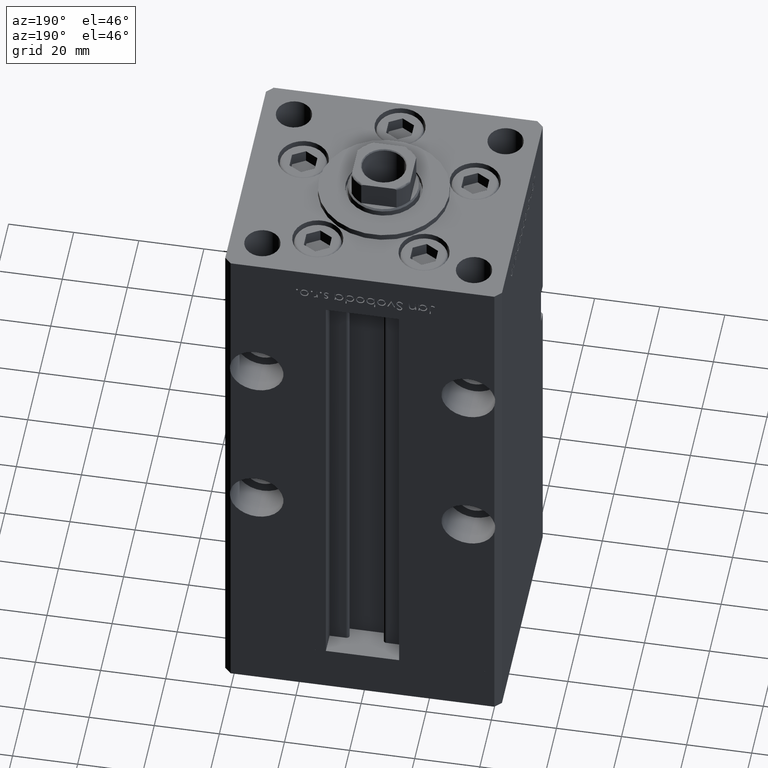
[diagram: clean part render]
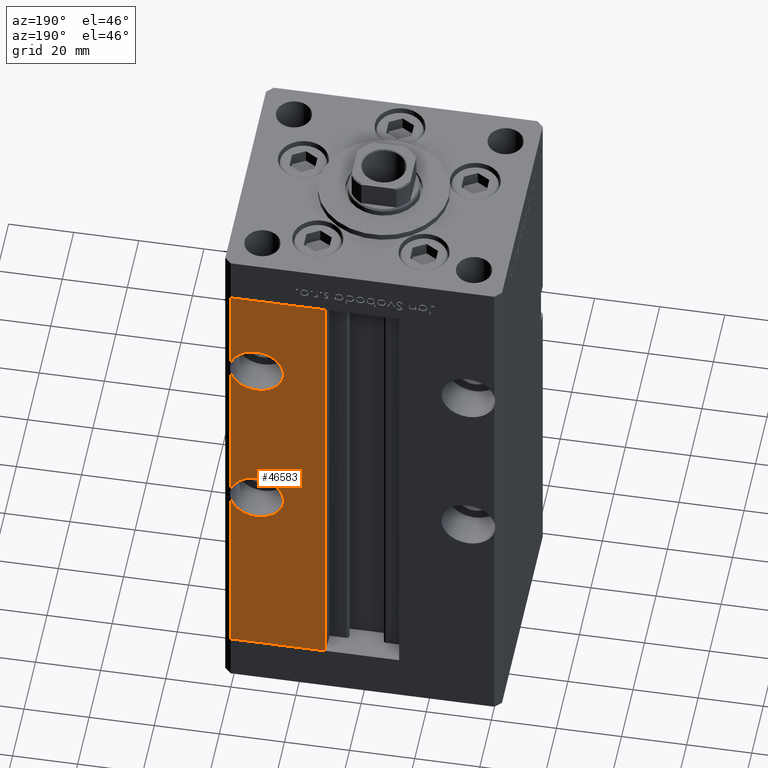
[diagram: same view with one face highlighted and labeled with its STEP entity id]
A machine part, auxiliary view. The second image highlights one B-rep face of the part: STEP entity #46583.
In plain terms, the highlighted planar face has unit normal (0, -1, 0).
Its self-contained STEP definition (entity closure, byte-faithful):
#159 = DIRECTION ( 'NONE',  ( 0.000000000000000000, 0.000000000000000000, -1.000000000000000000 ) ) ;
#1051 = EDGE_CURVE ( 'NONE', #2018, #48564, #11385, .T. ) ;
#2018 = VERTEX_POINT ( 'NONE', #45298 ) ;
#2619 = LINE ( 'NONE', #18510, #19942 ) ;
#3347 = VERTEX_POINT ( 'NONE', #20324 ) ;
#3755 = FACE_OUTER_BOUND ( 'NONE', #25471, .T. ) ;
#3896 = DIRECTION ( 'NONE',  ( 0.000000000000000000, 0.000000000000000000, 1.000000000000000000 ) ) ;
#4120 = ORIENTED_EDGE ( 'NONE', *, *, #49575, .F. ) ;
#4197 = DIRECTION ( 'NONE',  ( 0.000000000000000000, 1.000000000000000000, -0.000000000000000000 ) ) ;
#4511 = DIRECTION ( 'NONE',  ( 0.000000000000000000, 0.000000000000000000, -1.000000000000000000 ) ) ;
#4724 = CIRCLE ( 'NONE', #42515, 8.250000000000007105 ) ;
#4826 = CARTESIAN_POINT ( 'NONE',  ( 32.50000000000000000, 37.50000000000000000, 109.7499999999999858 ) ) ;
#5308 = VECTOR ( 'NONE', #16431, 1000.000000000000000 ) ;
#5543 = LINE ( 'NONE', #35129, #17250 ) ;
#6413 = CARTESIAN_POINT ( 'NONE',  ( 40.50000000000000711, 37.50000000000000000, 120.0155644370746586 ) ) ;
#6663 = VERTEX_POINT ( 'NONE', #38478 ) ;
#7986 = VECTOR ( 'NONE', #52550, 1000.000000000000000 ) ;
#8198 = AXIS2_PLACEMENT_3D ( 'NONE', #41045, #4197, #159 ) ;
#8674 = CARTESIAN_POINT ( 'NONE',  ( 32.50000000000000000, 37.50000000000000000, 126.2500000000000000 ) ) ;
#9078 = EDGE_CURVE ( 'NONE', #3347, #6663, #25321, .T. ) ;
#9269 = CARTESIAN_POINT ( 'NONE',  ( 32.50000000000000000, 37.50000000000000000, 118.0000000000000000 ) ) ;
#9861 = EDGE_CURVE ( 'NONE', #44326, #46759, #4724, .T. ) ;
#10371 = VERTEX_POINT ( 'NONE', #33985 ) ;
#11141 = ORIENTED_EDGE ( 'NONE', *, *, #35712, .T. ) ;
#11156 = ORIENTED_EDGE ( 'NONE', *, *, #1051, .T. ) ;
#11385 = LINE ( 'NONE', #27805, #7986 ) ;
#11630 = DIRECTION ( 'NONE',  ( -1.000000000000000000, 0.000000000000000000, 0.000000000000000000 ) ) ;
#14202 = DIRECTION ( 'NONE',  ( 0.000000000000000000, 1.000000000000000000, 0.000000000000000000 ) ) ;
#14675 = DIRECTION ( 'NONE',  ( -0.000000000000000000, -0.000000000000000000, -1.000000000000000000 ) ) ;
#14899 = CARTESIAN_POINT ( 'NONE',  ( 40.50000000000000711, 37.50000000000000000, 0.000000000000000000 ) ) ;
#15311 = DIRECTION ( 'NONE',  ( 0.000000000000000000, 0.000000000000000000, -1.000000000000000000 ) ) ;
#15499 = ORIENTED_EDGE ( 'NONE', *, *, #9861, .F. ) ;
#16431 = DIRECTION ( 'NONE',  ( -0.000000000000000000, -0.000000000000000000, 1.000000000000000000 ) ) ;
#16990 = VERTEX_POINT ( 'NONE', #27318 ) ;
#17250 = VECTOR ( 'NONE', #14675, 1000.000000000000000 ) ;
#17282 = EDGE_CURVE ( 'NONE', #48564, #10371, #31825, .T. ) ;
#18299 = CARTESIAN_POINT ( 'NONE',  ( 32.50000000000000000, 37.50000000000000000, 63.00000000000000000 ) ) ;
#18510 = CARTESIAN_POINT ( 'NONE',  ( 40.50000000000000711, 37.50000000000000000, 148.5000000000000000 ) ) ;
#19353 = ORIENTED_EDGE ( 'NONE', *, *, #35978, .F. ) ;
#19942 = VECTOR ( 'NONE', #27902, 1000.000000000000000 ) ;
#20324 = CARTESIAN_POINT ( 'NONE',  ( 32.50000000000000000, 37.50000000000000000, 71.25000000000000000 ) ) ;
#20524 = DIRECTION ( 'NONE',  ( 0.000000000000000000, 1.000000000000000000, 0.000000000000000000 ) ) ;
#21069 = CIRCLE ( 'NONE', #8198, 8.249999999999992895 ) ;
#21323 = ORIENTED_EDGE ( 'NONE', *, *, #29420, .F. ) ;
#21396 = ORIENTED_EDGE ( 'NONE', *, *, #41673, .F. ) ;
#23624 = CARTESIAN_POINT ( 'NONE',  ( 40.50000000000000711, 37.50000000000000000, 115.9844355629253272 ) ) ;
#23774 = EDGE_CURVE ( 'NONE', #52546, #39463, #27341, .T. ) ;
#24437 = DIRECTION ( 'NONE',  ( 0.000000000000000000, 1.000000000000000000, -0.000000000000000000 ) ) ;
#25258 = AXIS2_PLACEMENT_3D ( 'NONE', #31762, #51930, #48950 ) ;
#25321 = CIRCLE ( 'NONE', #50195, 8.249999999999992895 ) ;
#25471 = EDGE_LOOP ( 'NONE', ( #47327, #30373, #19353, #4120, #11156, #52107, #11141, #45601, #47794, #21323, #21396, #15499 ) ) ;
#25678 = DIRECTION ( 'NONE',  ( 0.000000000000000000, 1.000000000000000000, 0.000000000000000000 ) ) ;
#25722 = AXIS2_PLACEMENT_3D ( 'NONE', #47019, #14202, #30636 ) ;
#26779 = CIRCLE ( 'NONE', #30226, 8.249999999999992895 ) ;
#27318 = CARTESIAN_POINT ( 'NONE',  ( 32.50000000000000000, 37.50000000000000000, 54.75000000000000711 ) ) ;
#27341 = LINE ( 'NONE', #36460, #42045 ) ;
#27805 = CARTESIAN_POINT ( 'NONE',  ( 40.50000000000000711, 37.50000000000000000, 148.5000000000000000 ) ) ;
#27902 = DIRECTION ( 'NONE',  ( -0.000000000000000000, -0.000000000000000000, -1.000000000000000000 ) ) ;
#28534 = CARTESIAN_POINT ( 'NONE',  ( 11.24999999999999822, 37.50000000000000000, 0.000000000000000000 ) ) ;
#28596 = CARTESIAN_POINT ( 'NONE',  ( 32.50000000000000000, 37.50000000000000000, 118.0000000000000000 ) ) ;
#29420 = EDGE_CURVE ( 'NONE', #34423, #35009, #51483, .T. ) ;
#30226 = AXIS2_PLACEMENT_3D ( 'NONE', #36801, #24437, #4511 ) ;
#30373 = ORIENTED_EDGE ( 'NONE', *, *, #9078, .F. ) ;
#30636 = DIRECTION ( 'NONE',  ( 0.000000000000000000, 0.000000000000000000, 1.000000000000000000 ) ) ;
#31762 = CARTESIAN_POINT ( 'NONE',  ( -11.24999999999999822, 37.50000000000000000, 148.5000000000000000 ) ) ;
#31825 = LINE ( 'NONE', #52515, #44420 ) ;
#32746 = EDGE_CURVE ( 'NONE', #44326, #6663, #5543, .T. ) ;
#33985 = CARTESIAN_POINT ( 'NONE',  ( 11.24999999999999822, 37.50000000000000000, 0.000000000000000000 ) ) ;
#34423 = VERTEX_POINT ( 'NONE', #8674 ) ;
#35009 = VERTEX_POINT ( 'NONE', #6413 ) ;
#35129 = CARTESIAN_POINT ( 'NONE',  ( 40.50000000000000711, 37.50000000000000000, 148.5000000000000000 ) ) ;
#35712 = EDGE_CURVE ( 'NONE', #10371, #52546, #46002, .T. ) ;
#35978 = EDGE_CURVE ( 'NONE', #16990, #3347, #26779, .T. ) ;
#36113 = DIRECTION ( 'NONE',  ( 0.000000000000000000, 0.000000000000000000, 1.000000000000000000 ) ) ;
#36460 = CARTESIAN_POINT ( 'NONE',  ( -11.24999999999999822, 37.50000000000000000, 148.5000000000000000 ) ) ;
#36801 = CARTESIAN_POINT ( 'NONE',  ( 32.50000000000000000, 37.50000000000000000, 63.00000000000000000 ) ) ;
#37658 = EDGE_CURVE ( 'NONE', #39463, #35009, #2619, .T. ) ;
#38478 = CARTESIAN_POINT ( 'NONE',  ( 40.50000000000000711, 37.50000000000000000, 65.01556443707460176 ) ) ;
#39463 = VERTEX_POINT ( 'NONE', #42478 ) ;
#39694 = DIRECTION ( 'NONE',  ( 1.000000000000000000, 0.000000000000000000, 0.000000000000000000 ) ) ;
#41045 = CARTESIAN_POINT ( 'NONE',  ( 32.50000000000000000, 37.50000000000000000, 63.00000000000000000 ) ) ;
#41673 = EDGE_CURVE ( 'NONE', #46759, #34423, #44101, .T. ) ;
#42045 = VECTOR ( 'NONE', #39694, 1000.000000000000000 ) ;
#42478 = CARTESIAN_POINT ( 'NONE',  ( 40.50000000000000711, 37.50000000000000000, 148.5000000000000000 ) ) ;
#42515 = AXIS2_PLACEMENT_3D ( 'NONE', #28596, #20524, #36113 ) ;
#44101 = CIRCLE ( 'NONE', #49288, 8.250000000000007105 ) ;
#44326 = VERTEX_POINT ( 'NONE', #23624 ) ;
#44420 = VECTOR ( 'NONE', #11630, 1000.000000000000000 ) ;
#44674 = CARTESIAN_POINT ( 'NONE',  ( 11.24999999999999112, 37.50000000000000000, 148.5000000000000000 ) ) ;
#45298 = CARTESIAN_POINT ( 'NONE',  ( 40.50000000000000711, 37.50000000000000000, 60.98443556292540535 ) ) ;
#45601 = ORIENTED_EDGE ( 'NONE', *, *, #23774, .T. ) ;
#46002 = LINE ( 'NONE', #28534, #5308 ) ;
#46583 = ADVANCED_FACE ( 'NONE', ( #3755 ), #52723, .F. ) ;
#46759 = VERTEX_POINT ( 'NONE', #4826 ) ;
#47019 = CARTESIAN_POINT ( 'NONE',  ( 32.50000000000000000, 37.50000000000000000, 118.0000000000000000 ) ) ;
#47068 = DIRECTION ( 'NONE',  ( 0.000000000000000000, 1.000000000000000000, -0.000000000000000000 ) ) ;
#47327 = ORIENTED_EDGE ( 'NONE', *, *, #32746, .T. ) ;
#47794 = ORIENTED_EDGE ( 'NONE', *, *, #37658, .T. ) ;
#48564 = VERTEX_POINT ( 'NONE', #14899 ) ;
#48950 = DIRECTION ( 'NONE',  ( 0.000000000000000000, -0.000000000000000000, -1.000000000000000000 ) ) ;
#49288 = AXIS2_PLACEMENT_3D ( 'NONE', #9269, #25678, #3896 ) ;
#49575 = EDGE_CURVE ( 'NONE', #2018, #16990, #21069, .T. ) ;
#50195 = AXIS2_PLACEMENT_3D ( 'NONE', #18299, #47068, #15311 ) ;
#51483 = CIRCLE ( 'NONE', #25722, 8.250000000000007105 ) ;
#51930 = DIRECTION ( 'NONE',  ( 0.000000000000000000, -1.000000000000000000, 0.000000000000000000 ) ) ;
#52107 = ORIENTED_EDGE ( 'NONE', *, *, #17282, .T. ) ;
#52515 = CARTESIAN_POINT ( 'NONE',  ( -11.24999999999999822, 37.50000000000000000, 0.000000000000000000 ) ) ;
#52546 = VERTEX_POINT ( 'NONE', #44674 ) ;
#52550 = DIRECTION ( 'NONE',  ( -0.000000000000000000, -0.000000000000000000, -1.000000000000000000 ) ) ;
#52723 = PLANE ( 'NONE',  #25258 ) ;